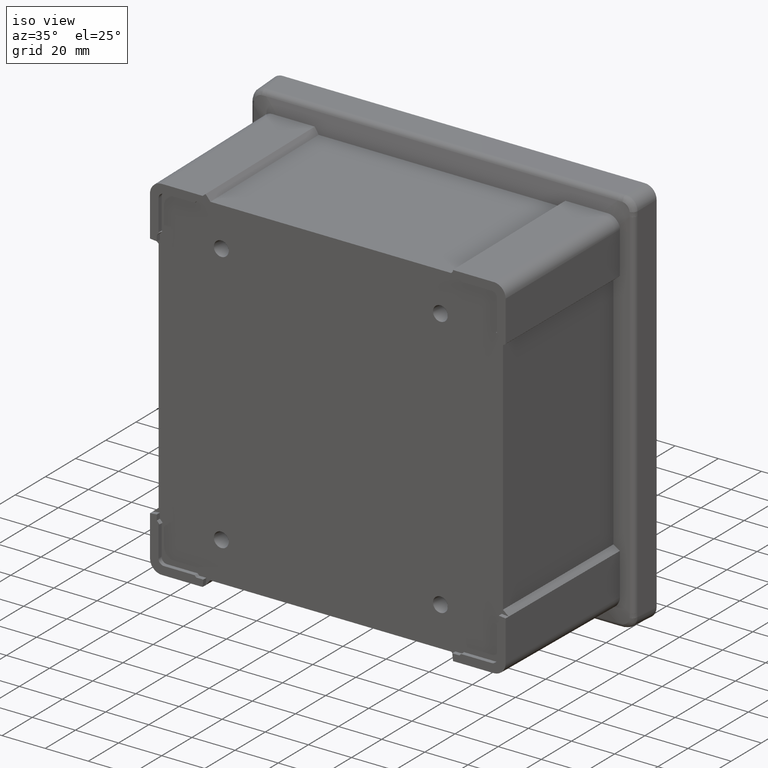
[diagram: clean part render]
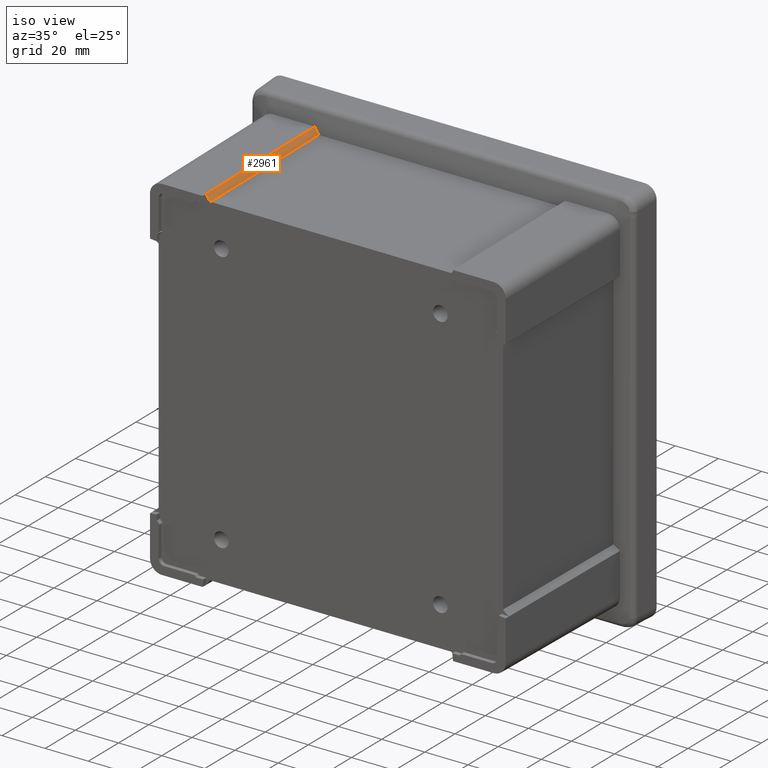
[diagram: same view with one face highlighted and labeled with its STEP entity id]
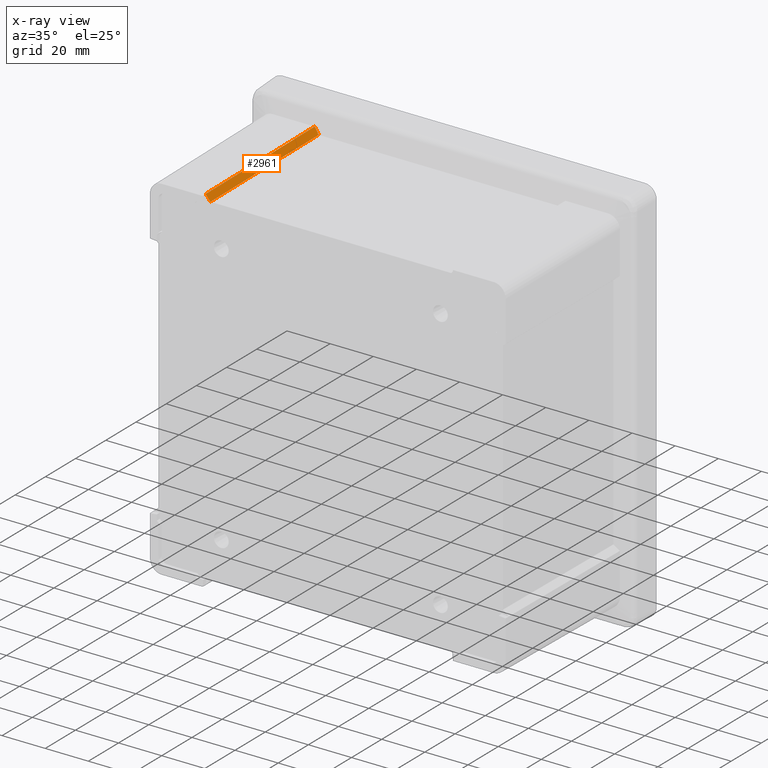
[diagram: x-ray of the same camera — body ghosted, the highlighted face saturated]
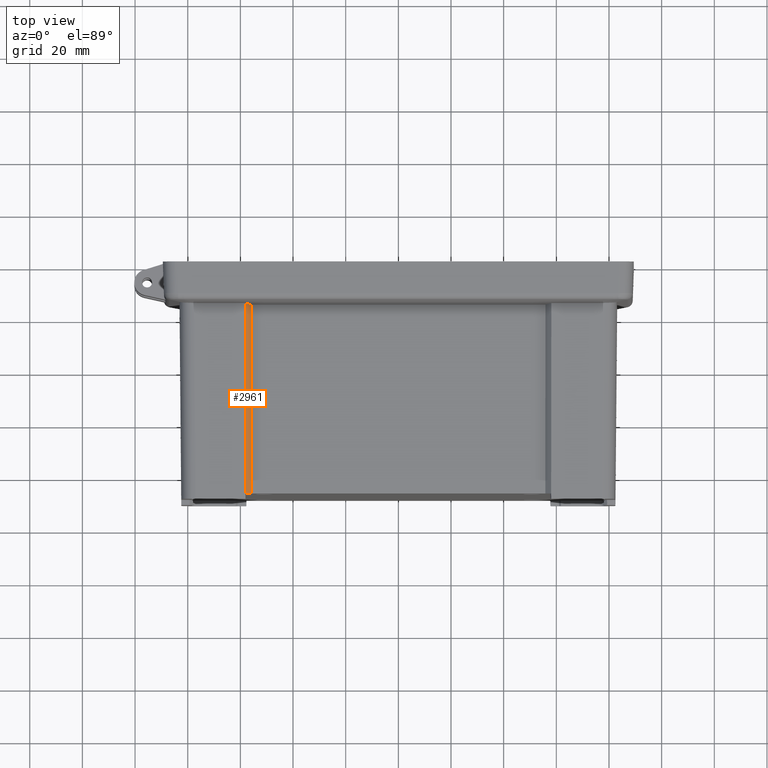
[diagram: same view with one face highlighted and labeled with its STEP entity id]
A machine part, iso view. The second image highlights one B-rep face of the part: STEP entity #2961.
The next image is the same camera in x-ray: the body ghosted, the highlighted face saturated — about 0% of this face is hidden behind the body in this view.
A second angle (top view) of the same face is appended — the face is thin or edge-on in the first view.
In plain terms, the highlighted planar face has unit normal (0.769, -0.0049, 0.6392).
Its self-contained STEP definition (entity closure, byte-faithful):
#773 = DIRECTION ( 'NONE',  ( 0.7689927654679138400, -0.004873209593379547600, 0.6392389056419118800 ) ) ;
#1320 = DIRECTION ( 'NONE',  ( -0.0009171954542837591500, 0.9999615024563482900, 0.008726531827788399500 ) ) ;
#1719 = ORIENTED_EDGE ( 'NONE', *, *, #11911, .F. ) ;
#1763 = CARTESIAN_POINT ( 'NONE',  ( -58.69302183845366000, -15.51733700486852600, 83.29957215251130300 ) ) ;
#2961 = ADVANCED_FACE ( 'NONE', ( #8364 ), #14501, .T. ) ;
#3127 = ORIENTED_EDGE ( 'NONE', *, *, #3703, .T. ) ;
#3146 = CARTESIAN_POINT ( 'NONE',  ( -58.10958041797915300, -15.66676608990629700, 82.59656357981077700 ) ) ;
#3601 = EDGE_LOOP ( 'NONE', ( #5599, #10113, #3127, #1719 ) ) ;
#3619 = LINE ( 'NONE', #13845, #5400 ) ;
#3703 = EDGE_CURVE ( 'NONE', #10036, #9558, #13319, .T. ) ;
#4254 = CARTESIAN_POINT ( 'NONE',  ( -55.89914553979431800, -16.23289535291627700, 79.93313480319714900 ) ) ;
#4401 = CARTESIAN_POINT ( 'NONE',  ( -58.11098511107314100, -14.13531604815996800, 82.60992834185324800 ) ) ;
#4411 = CARTESIAN_POINT ( 'NONE',  ( -58.04323415047504400, -88.00000000000000000, 81.96532101059936800 ) ) ;
#4675 = VECTOR ( 'NONE', #1320, 999.9999999999998900 ) ;
#5400 = VECTOR ( 'NONE', #6896, 1000.000000000000200 ) ;
#5519 = CARTESIAN_POINT ( 'NONE',  ( -55.83331854346725000, -88.00000000000000000, 79.30683276921627100 ) ) ;
#5523 = AXIS2_PLACEMENT_3D ( 'NONE', #12334, #773, #8701 ) ;
#5599 = ORIENTED_EDGE ( 'NONE', *, *, #13813, .F. ) ;
#5860 = VECTOR ( 'NONE', #13624, 1000.000000000000200 ) ;
#6361 = EDGE_CURVE ( 'NONE', #8819, #10036, #12126, .T. ) ;
#6896 = DIRECTION ( 'NONE',  ( -0.6392464961547650300, -0.0000000000000000000, 0.7690018967166828400 ) ) ;
#7006 = VERTEX_POINT ( 'NONE', #4411 ) ;
#8364 = FACE_OUTER_BOUND ( 'NONE', #3601, .T. ) ;
#8701 = DIRECTION ( 'NONE',  ( 0.6392464961547650300, 0.0000000000000000000, -0.7690018967166828400 ) ) ;
#8819 = VERTEX_POINT ( 'NONE', #5519 ) ;
#9514 = VECTOR ( 'NONE', #13582, 999.9999999999998900 ) ;
#9558 = VERTEX_POINT ( 'NONE', #3146 ) ;
#10036 = VERTEX_POINT ( 'NONE', #4254 ) ;
#10113 = ORIENTED_EDGE ( 'NONE', *, *, #6361, .T. ) ;
#11575 = CARTESIAN_POINT ( 'NONE',  ( -55.89916665582542500, -16.20987384961218300, 79.93333570881283400 ) ) ;
#11911 = EDGE_CURVE ( 'NONE', #7006, #9558, #12572, .T. ) ;
#12126 = LINE ( 'NONE', #11575, #4675 ) ;
#12334 = CARTESIAN_POINT ( 'NONE',  ( -58.11461583183414300, -10.17696565486941800, 82.64447234240501000 ) ) ;
#12572 = LINE ( 'NONE', #4401, #9514 ) ;
#13319 = LINE ( 'NONE', #1763, #5860 ) ;
#13582 = DIRECTION ( 'NONE',  ( -0.0009171954542809268800, 0.9999615024563482900, 0.008726531827785091400 ) ) ;
#13624 = DIRECTION ( 'NONE',  ( -0.6302581985891485500, 0.1614196432542163200, 0.7594197139150673500 ) ) ;
#13813 = EDGE_CURVE ( 'NONE', #8819, #7006, #3619, .T. ) ;
#13845 = CARTESIAN_POINT ( 'NONE',  ( -58.04323415047504400, -88.00000000000000000, 81.96532101059936800 ) ) ;
#14501 = PLANE ( 'NONE',  #5523 ) ;